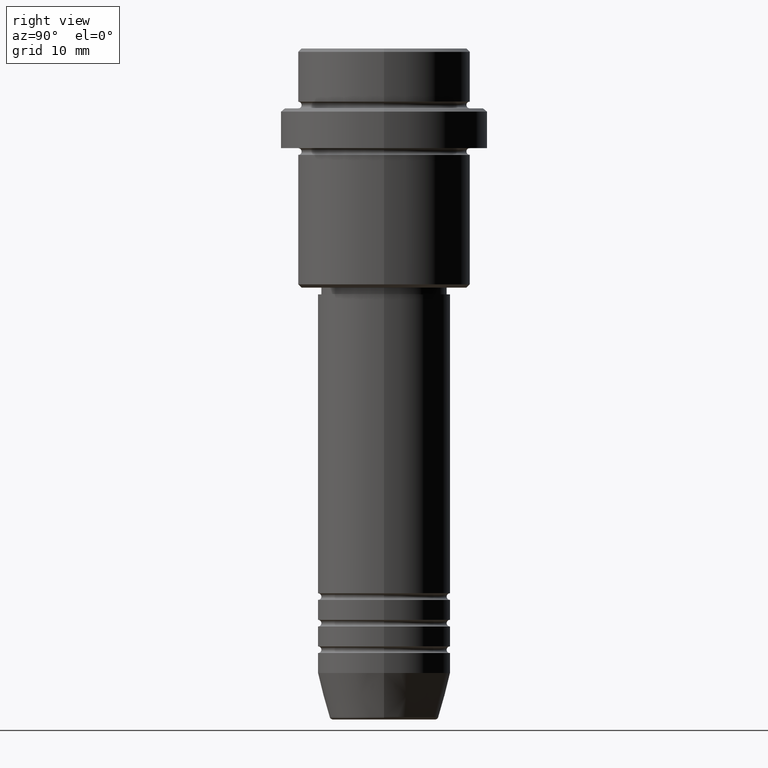
[diagram: clean part render]
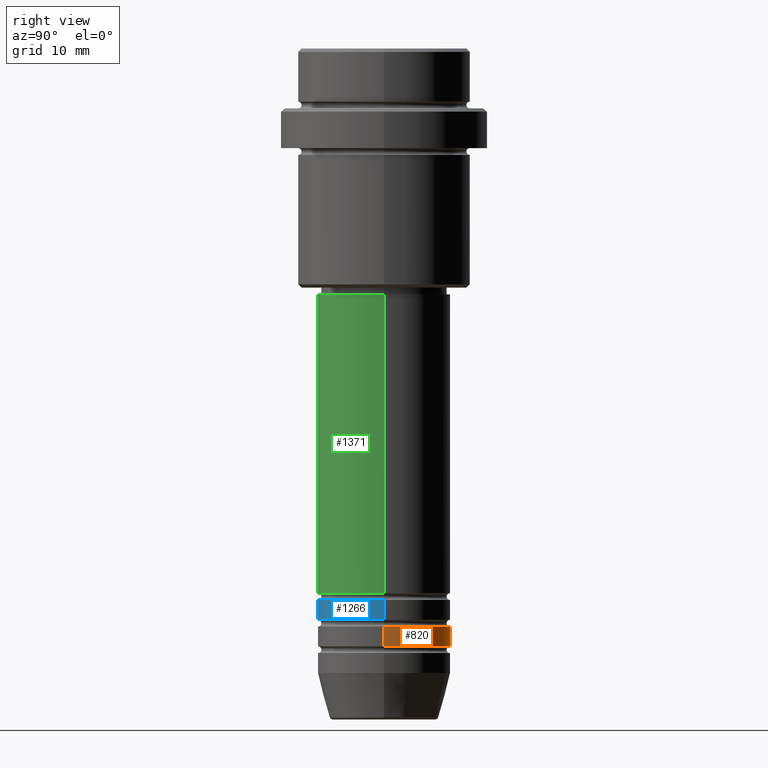
[diagram: same view with three faces highlighted in distinct colors, each labeled with its STEP entity id]
A machine part, right view with three faces highlighted in distinct colors.
Their STEP definitions:

[orange] entity #820 — the highlighted cylindrical surface (partial cylindrical patch) has radius 10 mm, axis along (-0, -0, 1).
#5 = EDGE_CURVE ( 'NONE', #996, #167, #1351, .T. ) ;
#71 = CARTESIAN_POINT ( 'NONE',  ( -10.00000000000000000, 1.224646799147353256E-15, -86.99999999999988631 ) ) ;
#72 = ORIENTED_EDGE ( 'NONE', *, *, #126, .F. ) ;
#100 = AXIS2_PLACEMENT_3D ( 'NONE', #746, #882, #629 ) ;
#107 = CARTESIAN_POINT ( 'NONE',  ( 0.000000000000000000, 0.000000000000000000, 0.000000000000000000 ) ) ;
#111 = VERTEX_POINT ( 'NONE', #362 ) ;
#126 = EDGE_CURVE ( 'NONE', #167, #722, #583, .T. ) ;
#167 = VERTEX_POINT ( 'NONE', #1068 ) ;
#267 = CARTESIAN_POINT ( 'NONE',  ( 0.000000000000000000, 0.000000000000000000, -86.99999999999988631 ) ) ;
#294 = EDGE_CURVE ( 'NONE', #996, #111, #1134, .T. ) ;
#309 = ORIENTED_EDGE ( 'NONE', *, *, #294, .T. ) ;
#332 = DIRECTION ( 'NONE',  ( -0.000000000000000000, -0.000000000000000000, 1.000000000000000000 ) ) ;
#362 = CARTESIAN_POINT ( 'NONE',  ( -10.00000000000000000, 1.224646799147353256E-15, -89.99999999999988631 ) ) ;
#420 = AXIS2_PLACEMENT_3D ( 'NONE', #107, #1210, #1332 ) ;
#467 = CARTESIAN_POINT ( 'NONE',  ( 10.00000000000000000, 0.000000000000000000, 0.000000000000000000 ) ) ;
#583 = CIRCLE ( 'NONE', #1391, 10.00000000000000000 ) ;
#629 = DIRECTION ( 'NONE',  ( 1.000000000000000000, 0.000000000000000000, 0.000000000000000000 ) ) ;
#649 = ORIENTED_EDGE ( 'NONE', *, *, #5, .F. ) ;
#722 = VERTEX_POINT ( 'NONE', #71 ) ;
#746 = CARTESIAN_POINT ( 'NONE',  ( 0.000000000000000000, 0.000000000000000000, -89.99999999999988631 ) ) ;
#777 = FACE_OUTER_BOUND ( 'NONE', #892, .T. ) ;
#811 = DIRECTION ( 'NONE',  ( -0.000000000000000000, -0.000000000000000000, 1.000000000000000000 ) ) ;
#814 = DIRECTION ( 'NONE',  ( -0.000000000000000000, -0.000000000000000000, 1.000000000000000000 ) ) ;
#820 = ADVANCED_FACE ( 'NONE', ( #777 ), #1103, .T. ) ;
#827 = ORIENTED_EDGE ( 'NONE', *, *, #983, .T. ) ;
#882 = DIRECTION ( 'NONE',  ( -0.000000000000000000, -0.000000000000000000, 1.000000000000000000 ) ) ;
#892 = EDGE_LOOP ( 'NONE', ( #309, #827, #72, #649 ) ) ;
#929 = CARTESIAN_POINT ( 'NONE',  ( -10.00000000000000000, 1.224646799147353256E-15, 0.000000000000000000 ) ) ;
#959 = DIRECTION ( 'NONE',  ( 1.000000000000000000, 0.000000000000000000, 0.000000000000000000 ) ) ;
#983 = EDGE_CURVE ( 'NONE', #111, #722, #1056, .T. ) ;
#996 = VERTEX_POINT ( 'NONE', #1234 ) ;
#1056 = LINE ( 'NONE', #929, #1241 ) ;
#1068 = CARTESIAN_POINT ( 'NONE',  ( 10.00000000000000000, 0.000000000000000000, -86.99999999999988631 ) ) ;
#1076 = VECTOR ( 'NONE', #332, 1000.000000000000000 ) ;
#1103 = CYLINDRICAL_SURFACE ( 'NONE', #420, 10.00000000000000000 ) ;
#1134 = CIRCLE ( 'NONE', #100, 10.00000000000000000 ) ;
#1210 = DIRECTION ( 'NONE',  ( -0.000000000000000000, -0.000000000000000000, 1.000000000000000000 ) ) ;
#1234 = CARTESIAN_POINT ( 'NONE',  ( 10.00000000000000000, 0.000000000000000000, -89.99999999999988631 ) ) ;
#1241 = VECTOR ( 'NONE', #811, 1000.000000000000000 ) ;
#1332 = DIRECTION ( 'NONE',  ( 1.000000000000000000, 0.000000000000000000, 0.000000000000000000 ) ) ;
#1351 = LINE ( 'NONE', #467, #1076 ) ;
#1391 = AXIS2_PLACEMENT_3D ( 'NONE', #267, #814, #959 ) ;

[blue] entity #1266 — the highlighted cylindrical surface (partial cylindrical patch) has radius 10 mm, axis along (-0, -0, 1).
#25 = VERTEX_POINT ( 'NONE', #801 ) ;
#64 = CARTESIAN_POINT ( 'NONE',  ( 10.00000000000000000, 0.000000000000000000, 0.000000000000000000 ) ) ;
#76 = FACE_OUTER_BOUND ( 'NONE', #1389, .T. ) ;
#82 = VECTOR ( 'NONE', #956, 1000.000000000000000 ) ;
#96 = CARTESIAN_POINT ( 'NONE',  ( 0.000000000000000000, 0.000000000000000000, -82.99999999999988631 ) ) ;
#255 = VERTEX_POINT ( 'NONE', #863 ) ;
#261 = VERTEX_POINT ( 'NONE', #855 ) ;
#263 = DIRECTION ( 'NONE',  ( 1.000000000000000000, 0.000000000000000000, 0.000000000000000000 ) ) ;
#413 = CARTESIAN_POINT ( 'NONE',  ( 0.000000000000000000, 0.000000000000000000, 0.000000000000000000 ) ) ;
#454 = ORIENTED_EDGE ( 'NONE', *, *, #887, .F. ) ;
#479 = ORIENTED_EDGE ( 'NONE', *, *, #779, .F. ) ;
#515 = CYLINDRICAL_SURFACE ( 'NONE', #1312, 10.00000000000000000 ) ;
#536 = EDGE_CURVE ( 'NONE', #1015, #25, #812, .T. ) ;
#551 = ORIENTED_EDGE ( 'NONE', *, *, #1026, .T. ) ;
#565 = CIRCLE ( 'NONE', #1362, 10.00000000000000000 ) ;
#690 = CARTESIAN_POINT ( 'NONE',  ( 10.00000000000000000, 0.000000000000000000, -85.99999999999988631 ) ) ;
#734 = VECTOR ( 'NONE', #769, 1000.000000000000000 ) ;
#769 = DIRECTION ( 'NONE',  ( -0.000000000000000000, -0.000000000000000000, 1.000000000000000000 ) ) ;
#779 = EDGE_CURVE ( 'NONE', #261, #25, #565, .T. ) ;
#801 = CARTESIAN_POINT ( 'NONE',  ( 10.00000000000000000, 0.000000000000000000, -82.99999999999988631 ) ) ;
#812 = LINE ( 'NONE', #64, #82 ) ;
#855 = CARTESIAN_POINT ( 'NONE',  ( -10.00000000000000000, 1.224646799147353256E-15, -82.99999999999988631 ) ) ;
#863 = CARTESIAN_POINT ( 'NONE',  ( -10.00000000000000000, 1.224646799147353256E-15, -85.99999999999988631 ) ) ;
#887 = EDGE_CURVE ( 'NONE', #255, #261, #890, .T. ) ;
#890 = LINE ( 'NONE', #909, #734 ) ;
#909 = CARTESIAN_POINT ( 'NONE',  ( -10.00000000000000000, 1.224646799147353256E-15, 0.000000000000000000 ) ) ;
#956 = DIRECTION ( 'NONE',  ( -0.000000000000000000, -0.000000000000000000, 1.000000000000000000 ) ) ;
#970 = DIRECTION ( 'NONE',  ( -0.000000000000000000, -0.000000000000000000, 1.000000000000000000 ) ) ;
#994 = AXIS2_PLACEMENT_3D ( 'NONE', #1341, #1231, #263 ) ;
#1015 = VERTEX_POINT ( 'NONE', #690 ) ;
#1026 = EDGE_CURVE ( 'NONE', #255, #1015, #1182, .T. ) ;
#1086 = DIRECTION ( 'NONE',  ( 1.000000000000000000, 0.000000000000000000, 0.000000000000000000 ) ) ;
#1181 = DIRECTION ( 'NONE',  ( -0.000000000000000000, -0.000000000000000000, 1.000000000000000000 ) ) ;
#1182 = CIRCLE ( 'NONE', #994, 10.00000000000000000 ) ;
#1231 = DIRECTION ( 'NONE',  ( -0.000000000000000000, -0.000000000000000000, 1.000000000000000000 ) ) ;
#1266 = ADVANCED_FACE ( 'NONE', ( #76 ), #515, .T. ) ;
#1312 = AXIS2_PLACEMENT_3D ( 'NONE', #413, #970, #1398 ) ;
#1341 = CARTESIAN_POINT ( 'NONE',  ( 0.000000000000000000, 0.000000000000000000, -85.99999999999988631 ) ) ;
#1362 = AXIS2_PLACEMENT_3D ( 'NONE', #96, #1181, #1086 ) ;
#1379 = ORIENTED_EDGE ( 'NONE', *, *, #536, .T. ) ;
#1389 = EDGE_LOOP ( 'NONE', ( #454, #551, #1379, #479 ) ) ;
#1398 = DIRECTION ( 'NONE',  ( 1.000000000000000000, 0.000000000000000000, 0.000000000000000000 ) ) ;

[green] entity #1371 — the highlighted cylindrical surface (partial cylindrical patch) has radius 10 mm, axis along (-0, -0, 1).
#14 = VECTOR ( 'NONE', #1381, 1000.000000000000000 ) ;
#70 = LINE ( 'NONE', #1278, #14 ) ;
#104 = AXIS2_PLACEMENT_3D ( 'NONE', #240, #935, #359 ) ;
#146 = VERTEX_POINT ( 'NONE', #1257 ) ;
#237 = ORIENTED_EDGE ( 'NONE', *, *, #1044, .F. ) ;
#240 = CARTESIAN_POINT ( 'NONE',  ( 0.000000000000000000, 0.000000000000000000, -36.99999999999998579 ) ) ;
#252 = CIRCLE ( 'NONE', #104, 10.00000000000000178 ) ;
#278 = CIRCLE ( 'NONE', #446, 10.00000000000000000 ) ;
#331 = DIRECTION ( 'NONE',  ( 1.000000000000000000, 0.000000000000000000, 0.000000000000000000 ) ) ;
#338 = EDGE_CURVE ( 'NONE', #1029, #937, #648, .T. ) ;
#359 = DIRECTION ( 'NONE',  ( 1.000000000000000000, 0.000000000000000000, 0.000000000000000000 ) ) ;
#410 = CARTESIAN_POINT ( 'NONE',  ( -10.00000000000000178, 1.224646799147353454E-15, -36.99999999999998579 ) ) ;
#446 = AXIS2_PLACEMENT_3D ( 'NONE', #900, #1324, #331 ) ;
#501 = EDGE_CURVE ( 'NONE', #146, #1029, #278, .T. ) ;
#607 = CARTESIAN_POINT ( 'NONE',  ( 10.00000000000000000, 0.000000000000000000, -81.99999999999987210 ) ) ;
#648 = LINE ( 'NONE', #655, #925 ) ;
#655 = CARTESIAN_POINT ( 'NONE',  ( 10.00000000000000178, 0.000000000000000000, 0.000000000000000000 ) ) ;
#687 = VERTEX_POINT ( 'NONE', #410 ) ;
#780 = DIRECTION ( 'NONE',  ( -0.000000000000000000, -0.000000000000000000, 1.000000000000000000 ) ) ;
#813 = EDGE_LOOP ( 'NONE', ( #1164, #1361, #838, #237 ) ) ;
#838 = ORIENTED_EDGE ( 'NONE', *, *, #338, .T. ) ;
#888 = FACE_OUTER_BOUND ( 'NONE', #813, .T. ) ;
#900 = CARTESIAN_POINT ( 'NONE',  ( 0.000000000000000000, 0.000000000000000000, -81.99999999999987210 ) ) ;
#925 = VECTOR ( 'NONE', #1090, 1000.000000000000000 ) ;
#935 = DIRECTION ( 'NONE',  ( -0.000000000000000000, -0.000000000000000000, 1.000000000000000000 ) ) ;
#937 = VERTEX_POINT ( 'NONE', #997 ) ;
#997 = CARTESIAN_POINT ( 'NONE',  ( 10.00000000000000178, 0.000000000000000000, -36.99999999999998579 ) ) ;
#1018 = DIRECTION ( 'NONE',  ( 1.000000000000000000, 0.000000000000000000, 0.000000000000000000 ) ) ;
#1029 = VERTEX_POINT ( 'NONE', #607 ) ;
#1044 = EDGE_CURVE ( 'NONE', #687, #937, #252, .T. ) ;
#1084 = AXIS2_PLACEMENT_3D ( 'NONE', #1308, #780, #1018 ) ;
#1090 = DIRECTION ( 'NONE',  ( -0.000000000000000000, -0.000000000000000000, 1.000000000000000000 ) ) ;
#1164 = ORIENTED_EDGE ( 'NONE', *, *, #1216, .F. ) ;
#1216 = EDGE_CURVE ( 'NONE', #146, #687, #70, .T. ) ;
#1257 = CARTESIAN_POINT ( 'NONE',  ( -10.00000000000000000, 1.224646799147353256E-15, -81.99999999999987210 ) ) ;
#1278 = CARTESIAN_POINT ( 'NONE',  ( -10.00000000000000178, 1.224646799147353454E-15, 0.000000000000000000 ) ) ;
#1308 = CARTESIAN_POINT ( 'NONE',  ( 0.000000000000000000, 0.000000000000000000, 0.000000000000000000 ) ) ;
#1321 = CYLINDRICAL_SURFACE ( 'NONE', #1084, 10.00000000000000178 ) ;
#1324 = DIRECTION ( 'NONE',  ( -0.000000000000000000, -0.000000000000000000, 1.000000000000000000 ) ) ;
#1361 = ORIENTED_EDGE ( 'NONE', *, *, #501, .T. ) ;
#1371 = ADVANCED_FACE ( 'NONE', ( #888 ), #1321, .T. ) ;
#1381 = DIRECTION ( 'NONE',  ( -0.000000000000000000, -0.000000000000000000, 1.000000000000000000 ) ) ;